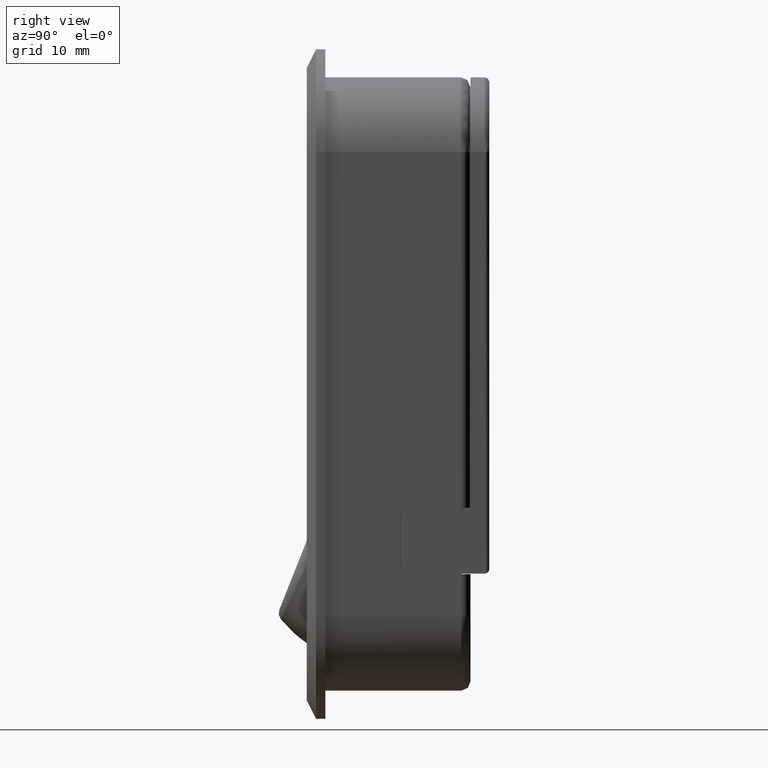
[diagram: clean part render]
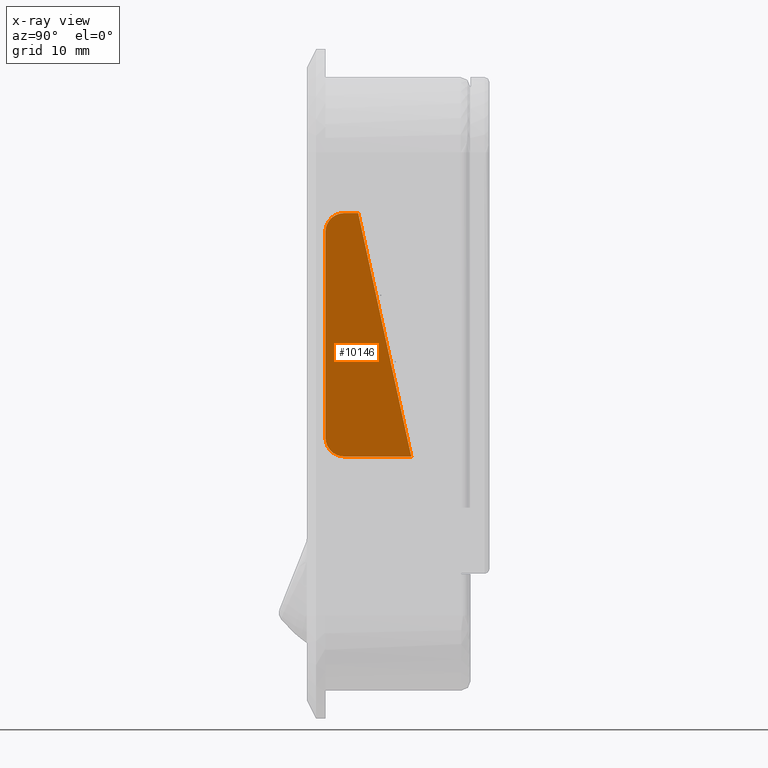
[diagram: x-ray — body ghosted, one internal face saturated and labeled with its STEP entity id]
A machine part, right view, then the same camera in x-ray: the body is ghosted and one INTERNAL B-rep face — a face not visible from any outside direction — is saturated and labeled: STEP entity #10146.
In plain terms, the highlighted face is a freeform B-spline surface patch.
Its self-contained STEP definition (entity closure, byte-faithful):
#10081=CARTESIAN_POINT('',(3.500000000000000,-5.957886540494606,36.298660469961781));
#10082=CARTESIAN_POINT('',(3.500000000000000,4.124784848430217,36.298660469961781));
#10083=CARTESIAN_POINT('',(3.500000000000000,-5.957886540494606,7.701301231052076));
#10084=CARTESIAN_POINT('',(3.500000000000000,4.124784848430217,7.701301231052076));
#10085=B_SPLINE_SURFACE_WITH_KNOTS('',1,1,((#10081,#10083),(#10082,#10084)),.UNSPECIFIED.,.F.,.F.,.U.,(2,2),(2,2),(0.0,10.082671388924821),(0.0,28.597359238909700),.UNSPECIFIED.);
#10086=CARTESIAN_POINT('',(3.499999999999951,3.666898062116545,8.999999999847150));
#10087=VERTEX_POINT('',#10086);
#10088=CARTESIAN_POINT('',(3.499999999999950,-2.002010510672265,34.999962398540049));
#10089=VERTEX_POINT('',#10088);
#10090=CARTESIAN_POINT('',(3.499999999999951,3.666898062116545,8.999999999847150));
#10091=CARTESIAN_POINT('',(3.499999999999950,-2.002010510672265,34.999962398540049));
#10092=QUASI_UNIFORM_CURVE('',1,(#10090,#10091),.UNSPECIFIED.,.F.,.U.);
#10093=EDGE_CURVE('',#10087,#10089,#10092,.T.);
#10094=ORIENTED_EDGE('',*,*,#10093,.F.);
#10095=CARTESIAN_POINT('',(3.499999999999950,-3.500000000042520,8.999999999847150));
#10096=VERTEX_POINT('',#10095);
#10097=CARTESIAN_POINT('',(3.499999999999950,-3.500000000042520,8.999999999847150));
#10098=CARTESIAN_POINT('',(3.499999999999951,3.666898062116545,8.999999999847150));
#10099=QUASI_UNIFORM_CURVE('',1,(#10097,#10098),.UNSPECIFIED.,.F.,.U.);
#10100=EDGE_CURVE('',#10096,#10087,#10099,.T.);
#10101=ORIENTED_EDGE('',*,*,#10100,.F.);
#10102=CARTESIAN_POINT('',(3.499999999999950,-5.499999999979420,10.999999999847139));
#10103=VERTEX_POINT('',#10102);
#10104=CARTESIAN_POINT('',(3.499999999999950,-5.499999999979420,10.999999999847139));
#10105=CARTESIAN_POINT('',(3.499999999999945,-5.500115667227354,10.787272200462070));
#10106=CARTESIAN_POINT('',(3.499999999999968,-5.444643507224854,10.443741178568580));
#10107=CARTESIAN_POINT('',(3.499999999999931,-5.251386287629935,10.007840123145879));
#10108=CARTESIAN_POINT('',(3.499999999999984,-5.024181518084729,9.685232658561727));
#10109=CARTESIAN_POINT('',(3.499999999999939,-4.738400091919043,9.413139815135180));
#10110=CARTESIAN_POINT('',(3.499999999999953,-4.432803126331446,9.219642347276571));
#10111=CARTESIAN_POINT('',(3.499999999999959,-4.023535835550656,9.050074505615491));
#10112=CARTESIAN_POINT('',(3.499999999999937,-3.712727913943211,8.999885680433755));
#10113=CARTESIAN_POINT('',(3.499999999999950,-3.500000000042520,8.999999999847150));
#10114=B_SPLINE_CURVE_WITH_KNOTS('',3,(#10104,#10105,#10106,#10107,#10108,#10109,#10110,#10111,#10112,#10113),.UNSPECIFIED.,.F.,.U.,(4,1,1,1,1,1,1,4),(0.000000054409711,0.638149096899248,1.030871407036021,1.423581817471064,1.816261475095669,2.208983504542272,2.503523754757883,3.141671488600820),.UNSPECIFIED.);
#10115=EDGE_CURVE('',#10103,#10096,#10114,.T.);
#10116=ORIENTED_EDGE('',*,*,#10115,.F.);
#10117=CARTESIAN_POINT('',(3.499999999999950,-5.500000000056299,32.999962398539942));
#10118=VERTEX_POINT('',#10117);
#10119=CARTESIAN_POINT('',(3.499999999999950,-5.500000000056299,32.999962398539942));
#10120=CARTESIAN_POINT('',(3.499999999999950,-5.499999999979420,10.999999999847139));
#10121=QUASI_UNIFORM_CURVE('',1,(#10119,#10120),.UNSPECIFIED.,.F.,.U.);
#10122=EDGE_CURVE('',#10118,#10103,#10121,.T.);
#10123=ORIENTED_EDGE('',*,*,#10122,.F.);
#10124=CARTESIAN_POINT('',(3.499999999999950,-3.500000000056415,34.999962398540049));
#10125=VERTEX_POINT('',#10124);
#10126=CARTESIAN_POINT('',(3.499999999999950,-3.500000000056415,34.999962398540049));
#10127=CARTESIAN_POINT('',(3.499999999999948,-3.712727493432523,35.000078622805667));
#10128=CARTESIAN_POINT('',(3.499999999999949,-4.056260341072783,34.944604454048502));
#10129=CARTESIAN_POINT('',(3.499999999999953,-4.492157698658944,34.751351120058729));
#10130=CARTESIAN_POINT('',(3.499999999999960,-4.814770624255528,34.524141160686924));
#10131=CARTESIAN_POINT('',(3.499999999999940,-5.086847330588364,34.238360286026619));
#10132=CARTESIAN_POINT('',(3.499999999999952,-5.324407023992094,33.863328594645267));
#10133=CARTESIAN_POINT('',(3.499999999999964,-5.469407501948813,33.441752612470317));
#10134=CARTESIAN_POINT('',(3.499999999999928,-5.500010419144330,33.130854886522251));
#10135=CARTESIAN_POINT('',(3.499999999999950,-5.500000000056299,32.999962398539942));
#10136=B_SPLINE_CURVE_WITH_KNOTS('',3,(#10126,#10127,#10128,#10129,#10130,#10131,#10132,#10133,#10134,#10135),.UNSPECIFIED.,.F.,.U.,(4,1,1,1,1,1,1,4),(0.000000054412864,0.638149096915862,1.030871407060888,1.423581817504206,1.816261475136821,2.208983504591481,2.748979510271814,3.141671488670193),.UNSPECIFIED.);
#10137=EDGE_CURVE('',#10125,#10118,#10136,.T.);
#10138=ORIENTED_EDGE('',*,*,#10137,.F.);
#10139=CARTESIAN_POINT('',(3.499999999999950,-2.002010510672265,34.999962398540049));
#10140=CARTESIAN_POINT('',(3.499999999999950,-3.500000000056415,34.999962398540049));
#10141=QUASI_UNIFORM_CURVE('',1,(#10139,#10140),.UNSPECIFIED.,.F.,.U.);
#10142=EDGE_CURVE('',#10089,#10125,#10141,.T.);
#10143=ORIENTED_EDGE('',*,*,#10142,.F.);
#10144=EDGE_LOOP('',(#10094,#10101,#10116,#10123,#10138,#10143));
#10145=FACE_OUTER_BOUND('',#10144,.T.);
#10146=ADVANCED_FACE('',(#10145),#10085,.T.);